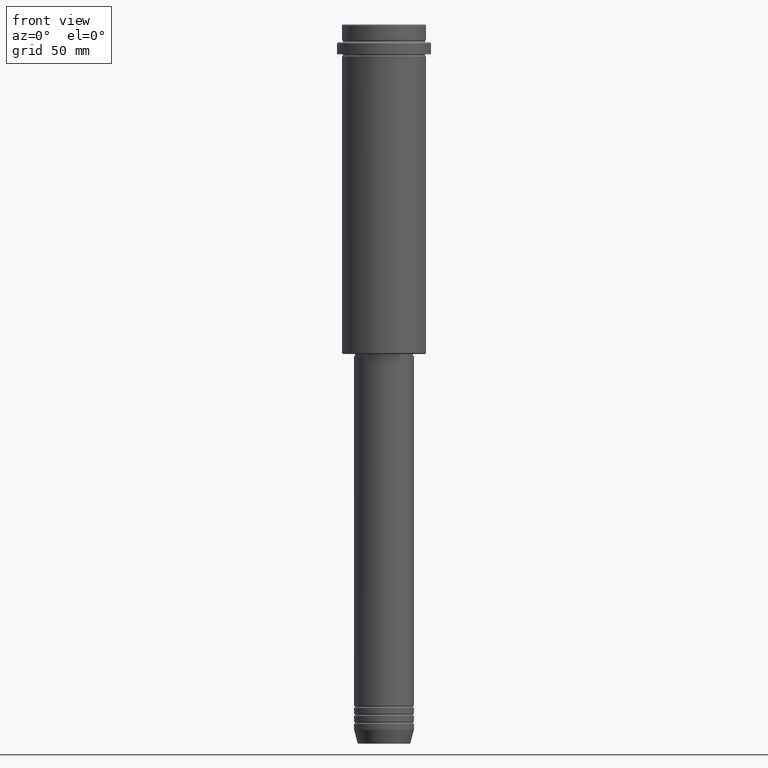
[diagram: clean part render]
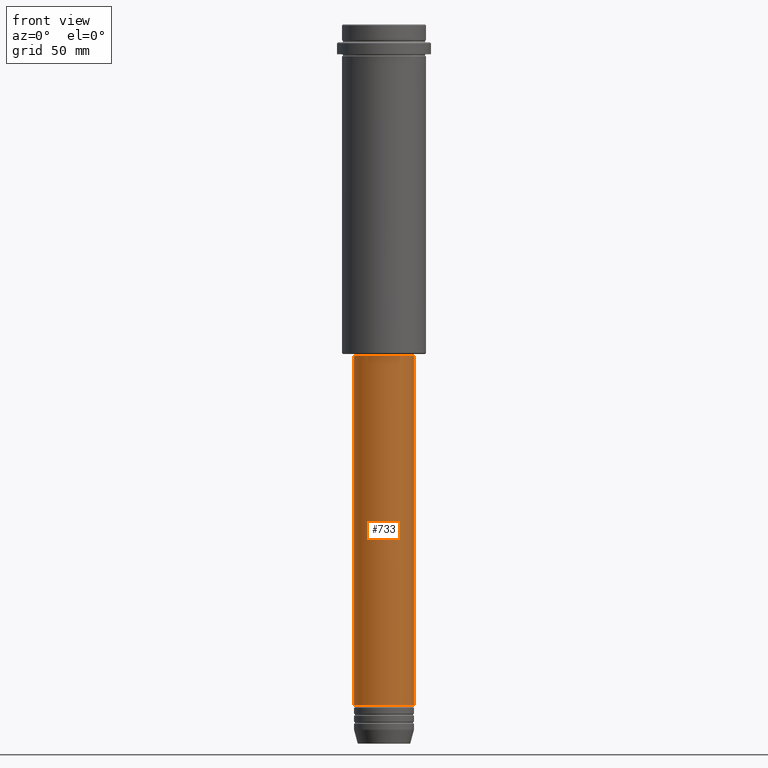
[diagram: same view with one face highlighted and labeled with its STEP entity id]
A machine part, front view. The second image highlights one B-rep face of the part: STEP entity #733.
In plain terms, the highlighted cylindrical surface (edge-blend (fillet) strip) has radius 15 mm, axis along (-0, -0, 1).
Its self-contained STEP definition (entity closure, byte-faithful):
#4 = LINE ( 'NONE', #329, #651 ) ;
#11 = CYLINDRICAL_SURFACE ( 'NONE', #995, 15.00000000000000000 ) ;
#42 = CARTESIAN_POINT ( 'NONE',  ( -15.00000000000000000, 1.836970198721029589E-15, -340.9999999999998863 ) ) ;
#57 = DIRECTION ( 'NONE',  ( 1.000000000000000000, 0.000000000000000000, 0.000000000000000000 ) ) ;
#99 = CARTESIAN_POINT ( 'NONE',  ( 0.000000000000000000, 0.000000000000000000, -165.9999999999999432 ) ) ;
#161 = CARTESIAN_POINT ( 'NONE',  ( -15.00000000000000000, 1.836970198721029589E-15, -165.9999999999999432 ) ) ;
#173 = CARTESIAN_POINT ( 'NONE',  ( 15.00000000000000000, 0.000000000000000000, -340.9999999999998863 ) ) ;
#206 = VERTEX_POINT ( 'NONE', #173 ) ;
#287 = CARTESIAN_POINT ( 'NONE',  ( 0.000000000000000000, 0.000000000000000000, -340.9999999999998863 ) ) ;
#329 = CARTESIAN_POINT ( 'NONE',  ( -15.00000000000000000, 1.836970198721029589E-15, 0.000000000000000000 ) ) ;
#342 = CIRCLE ( 'NONE', #383, 15.00000000000000000 ) ;
#353 = ORIENTED_EDGE ( 'NONE', *, *, #917, .T. ) ;
#360 = EDGE_CURVE ( 'NONE', #1258, #411, #4, .T. ) ;
#376 = EDGE_CURVE ( 'NONE', #411, #734, #342, .T. ) ;
#383 = AXIS2_PLACEMENT_3D ( 'NONE', #99, #873, #57 ) ;
#388 = DIRECTION ( 'NONE',  ( 1.000000000000000000, 0.000000000000000000, 0.000000000000000000 ) ) ;
#411 = VERTEX_POINT ( 'NONE', #161 ) ;
#519 = ORIENTED_EDGE ( 'NONE', *, *, #376, .F. ) ;
#523 = DIRECTION ( 'NONE',  ( -0.000000000000000000, -0.000000000000000000, 1.000000000000000000 ) ) ;
#573 = DIRECTION ( 'NONE',  ( -0.000000000000000000, -0.000000000000000000, 1.000000000000000000 ) ) ;
#651 = VECTOR ( 'NONE', #1205, 1000.000000000000000 ) ;
#660 = EDGE_LOOP ( 'NONE', ( #1066, #353, #1078, #519 ) ) ;
#704 = LINE ( 'NONE', #1142, #1087 ) ;
#733 = ADVANCED_FACE ( 'NONE', ( #1002 ), #11, .T. ) ;
#734 = VERTEX_POINT ( 'NONE', #793 ) ;
#793 = CARTESIAN_POINT ( 'NONE',  ( 15.00000000000000000, 0.000000000000000000, -165.9999999999999432 ) ) ;
#818 = AXIS2_PLACEMENT_3D ( 'NONE', #287, #523, #388 ) ;
#873 = DIRECTION ( 'NONE',  ( -0.000000000000000000, -0.000000000000000000, 1.000000000000000000 ) ) ;
#889 = CARTESIAN_POINT ( 'NONE',  ( 0.000000000000000000, 0.000000000000000000, 0.000000000000000000 ) ) ;
#917 = EDGE_CURVE ( 'NONE', #1258, #206, #1217, .T. ) ;
#995 = AXIS2_PLACEMENT_3D ( 'NONE', #889, #573, #1009 ) ;
#1002 = FACE_OUTER_BOUND ( 'NONE', #660, .T. ) ;
#1009 = DIRECTION ( 'NONE',  ( 1.000000000000000000, 0.000000000000000000, 0.000000000000000000 ) ) ;
#1025 = DIRECTION ( 'NONE',  ( -0.000000000000000000, -0.000000000000000000, 1.000000000000000000 ) ) ;
#1066 = ORIENTED_EDGE ( 'NONE', *, *, #360, .F. ) ;
#1078 = ORIENTED_EDGE ( 'NONE', *, *, #1354, .T. ) ;
#1087 = VECTOR ( 'NONE', #1025, 1000.000000000000000 ) ;
#1142 = CARTESIAN_POINT ( 'NONE',  ( 15.00000000000000000, 0.000000000000000000, 0.000000000000000000 ) ) ;
#1205 = DIRECTION ( 'NONE',  ( -0.000000000000000000, -0.000000000000000000, 1.000000000000000000 ) ) ;
#1217 = CIRCLE ( 'NONE', #818, 15.00000000000000000 ) ;
#1258 = VERTEX_POINT ( 'NONE', #42 ) ;
#1354 = EDGE_CURVE ( 'NONE', #206, #734, #704, .T. ) ;